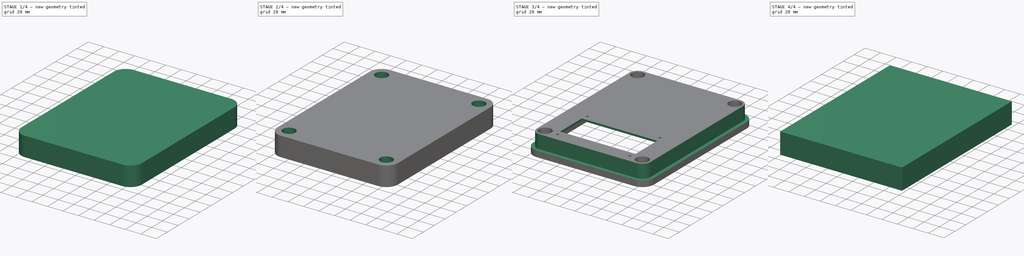
[diagram: build sequence overview — one tinted view per stage of 4, left to right]
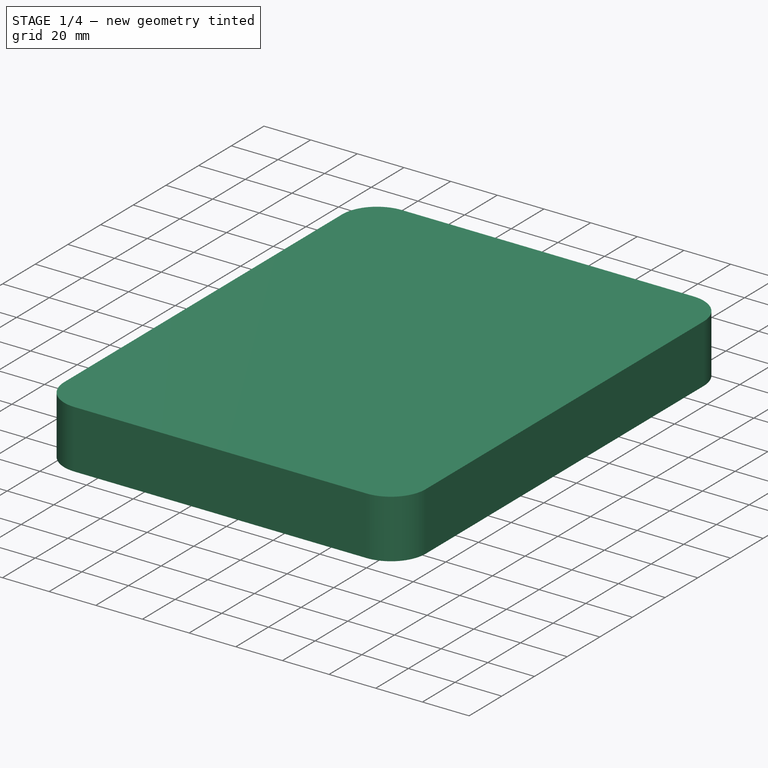
[diagram: stage 1 of 4 — iso view after this stage's code; geometry added in this stage tinted green]
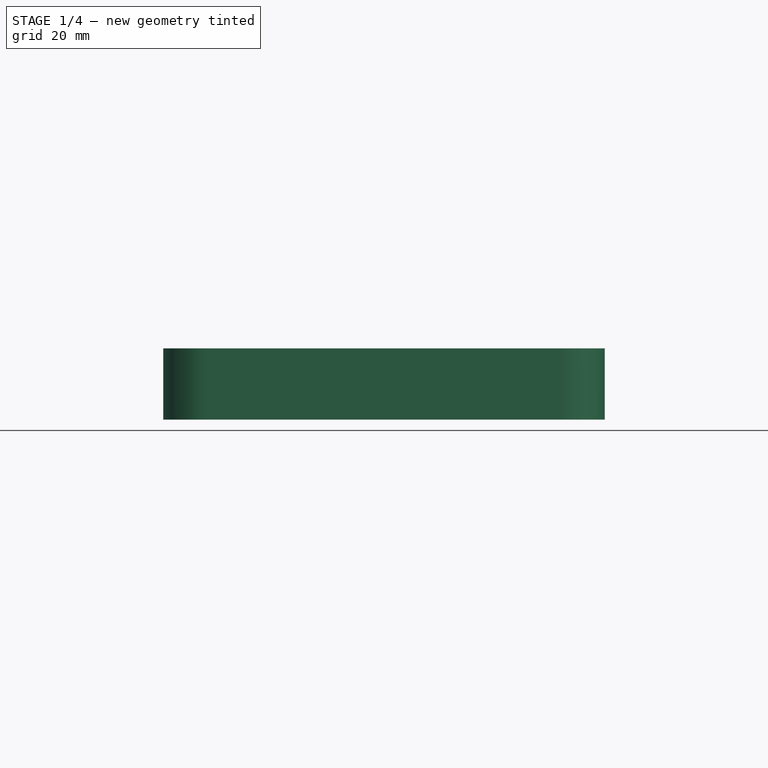
[diagram: stage 1 of 4 — front view after this stage's code; geometry added in this stage tinted green]
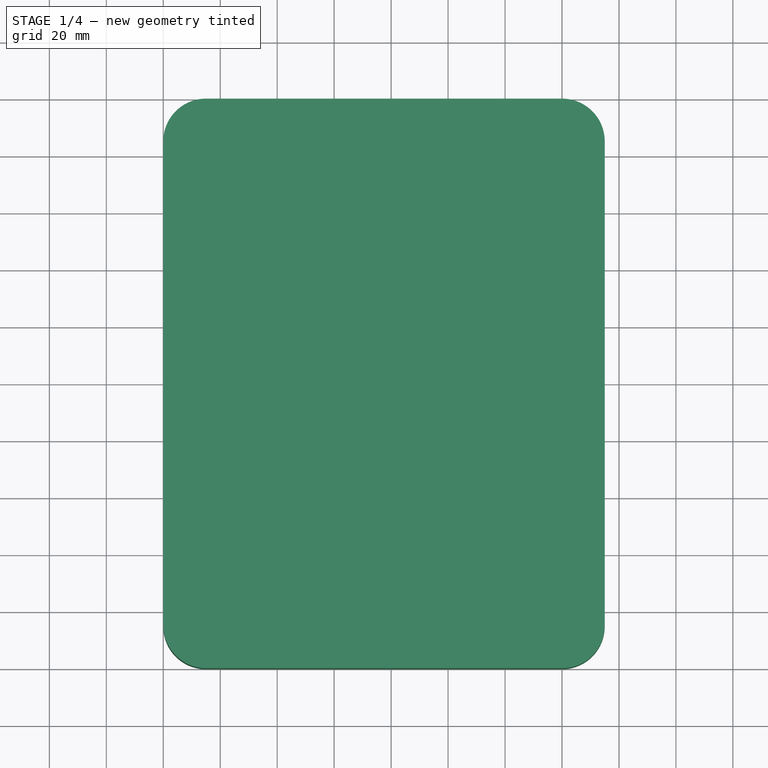
[diagram: stage 1 of 4 — top view after this stage's code; geometry added in this stage tinted green]
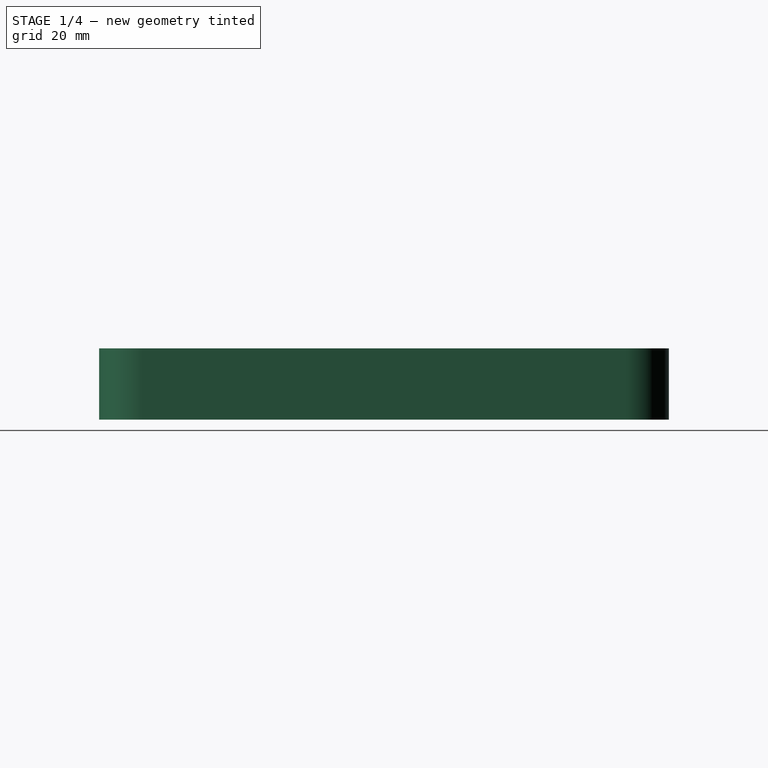
[diagram: stage 1 of 4 — right view after this stage's code; geometry added in this stage tinted green]
FCSTD DOCUMENT  (FreeCAD 0.19R17462 (Git))
Label: PathCoperchio
License: All rights reserved
LicenseURL: http://en.wikipedia.org/wiki/All_rights_reserved
objects: Sketcher::SketchObject×8, PartDesign::Pocket×7, Path::FeaturePython×3, Part::FeaturePython×2, PartDesign::Pad×1, PartDesign::Fillet×1, PartDesign::Body×1, App::FeaturePython×1, App::DocumentObjectGroup×1, Path::FeatureCompoundPython×1
note: 29 computed .brp shape members not serialized (recipe doc carries the construction recipe); baked Part::Feature solids carry a one-line shape summary decoded from their .brp

FEATURE [Sketcher::SketchObject] Sketch
  MapMode = 5
  Support = -> [XY_Plane]
  sketch-geometry (4):
    g0: LineSegment StartX=0 StartY=0 StartZ=0 EndX=155 EndY=0 EndZ=0
    g1: LineSegment StartX=155 StartY=0 StartZ=0 EndX=155 EndY=200 EndZ=0
    g2: LineSegment StartX=155 StartY=200 StartZ=0 EndX=0 EndY=200 EndZ=0
    g3: LineSegment StartX=0 StartY=200 StartZ=0 EndX=0 EndY=0 EndZ=0
  constraints (11):
    c: Coincident(g0,g1)
    c: Coincident(g1,g2)
    c: Coincident(g2,g3)
    c: Coincident(g3,g0)
    c: Horizontal(g0)
    c: Horizontal(g2)
    c: Vertical(g1)
    c: Vertical(g3)
    c: Coincident(g0,g-1)
    c: Distance(g2) = 155
    c: Distance(g3) = 200
FEATURE [PartDesign::Pad] Pad
  Length = 25
  Length2 = 100
  Profile = -> Sketch
  Type = 0
FEATURE [Sketcher::SketchObject] Sketch001
  ExternalGeometry = -> [Pad]
  MapMode = 5
  Placement = pos=(0,0,0) rot=(1,0,0;3.14159rad)
  Support = -> [Pad]
  sketch-geometry (39):
    g0: LineSegment [constr] StartX=7.5 StartY=-7.5 StartZ=0 EndX=147.5 EndY=-7.5 EndZ=0
    g1: LineSegment [constr] StartX=147.5 StartY=-7.5 StartZ=0 EndX=147.5 EndY=-192.5 EndZ=0
    g2: LineSegment [constr] StartX=147.5 StartY=-192.5 StartZ=0 EndX=7.5 EndY=-192.5 EndZ=0
    g3: LineSegment [constr] StartX=7.5 StartY=-192.5 StartZ=0 EndX=7.5 EndY=-7.5 EndZ=0
    g4: LineSegment [constr] StartX=77.5 StartY=0 StartZ=0 EndX=77.5 EndY=-200 EndZ=0
    g5: LineSegment [constr] StartX=0 StartY=-100 StartZ=0 EndX=155 EndY=-100 EndZ=0
    g6: GeomPoint X=77.5 Y=-100 Z=0
    g7: LineSegment [constr] StartX=7.5 StartY=-7.5 StartZ=0 EndX=27.5 EndY=-7.5 EndZ=0
    g8: LineSegment [constr] StartX=27.5 StartY=-7.5 StartZ=0 EndX=27.5 EndY=-27.5 EndZ=0
    g9: LineSegment [constr] StartX=27.5 StartY=-27.5 StartZ=0 EndX=7.5 EndY=-27.5 EndZ=0
    g10: LineSegment [constr] StartX=7.5 StartY=-27.5 StartZ=0 EndX=7.5 EndY=-7.5 EndZ=0
    g11: LineSegment [constr] StartX=147.5 StartY=-7.5 StartZ=0 EndX=127.5 EndY=-7.5 EndZ=0
    g12: LineSegment [constr] StartX=127.5 StartY=-7.5 StartZ=0 EndX=127.5 EndY=-27.5 EndZ=0
    g13: LineSegment [constr] StartX=127.5 StartY=-27.5 StartZ=0 EndX=147.5 EndY=-27.5 EndZ=0
    g14: LineSegment [constr] StartX=147.5 StartY=-27.5 StartZ=0 EndX=147.5 EndY=-7.5 EndZ=0
    g15: LineSegment [constr] StartX=147.5 StartY=-192.5 StartZ=0 EndX=127.5 EndY=-192.5 EndZ=0
    g16: LineSegment [constr] StartX=127.5 StartY=-192.5 StartZ=0 EndX=127.5 EndY=-172.5 EndZ=0
    g17: LineSegment [constr] StartX=127.5 StartY=-172.5 StartZ=0 EndX=147.5 EndY=-172.5 EndZ=0
    g18: LineSegment [constr] StartX=147.5 StartY=-172.5 StartZ=0 EndX=147.5 EndY=-192.5 EndZ=0
    g19: LineSegment [constr] StartX=7.5 StartY=-192.5 StartZ=0 EndX=27.5 EndY=-192.5 EndZ=0
    g20: LineSegment [constr] StartX=27.5 StartY=-192.5 StartZ=0 EndX=27.5 EndY=-172.5 EndZ=0
    g21: LineSegment [constr] StartX=27.5 StartY=-172.5 StartZ=0 EndX=7.5 EndY=-172.5 EndZ=0
    g22: LineSegment [constr] StartX=7.5 StartY=-172.5 StartZ=0 EndX=7.5 EndY=-192.5 EndZ=0
    g23: ArcOfCircle CenterX=17.5 CenterY=-17.5 CenterZ=0 NormalX=0 NormalY=0 NormalZ=1 AngleXU=0 Radius=10 StartAngle=4.71239 EndAngle=6.28319
    g24: ArcOfCircle CenterX=137.5 CenterY=-17.5 CenterZ=0 NormalX=0 NormalY=0 NormalZ=1 AngleXU=0 Radius=10 StartAngle=3.14159 EndAngle=4.71239
    g25: ArcOfCircle CenterX=137.5 CenterY=-182.5 CenterZ=0 NormalX=0 NormalY=0 NormalZ=1 AngleXU=0 Radius=10 StartAngle=1.5708 EndAngle=3.14159
    g26: ArcOfCircle CenterX=17.5 CenterY=-182.5 CenterZ=0 NormalX=0 NormalY=0 NormalZ=1 AngleXU=0 Radius=10 StartAngle=1.00045e-07 EndAngle=1.5708
    g27: LineSegment StartX=27.5 StartY=-17.5 StartZ=0 EndX=27.5 EndY=-7.5 EndZ=0
    g28: LineSegment StartX=27.5 StartY=-7.5 StartZ=0 EndX=127.5 EndY=-7.5 EndZ=0
    g29: LineSegment StartX=127.5 StartY=-7.5 StartZ=0 EndX=127.5 EndY=-17.5 EndZ=0
    g30: LineSegment StartX=137.5 StartY=-27.5 StartZ=0 EndX=147.5 EndY=-27.5 EndZ=0
    g31: LineSegment StartX=147.5 StartY=-27.5 StartZ=0 EndX=147.5 EndY=-172.5 EndZ=0
    g32: LineSegment StartX=147.5 StartY=-172.5 StartZ=0 EndX=137.5 EndY=-172.5 EndZ=0
    g33: LineSegment StartX=27.5 StartY=-182.5 StartZ=0 EndX=27.5 EndY=-192.5 EndZ=0
    g34: LineSegment StartX=27.5 StartY=-192.5 StartZ=0 EndX=127.5 EndY=-192.5 EndZ=0
    g35: LineSegment StartX=127.5 StartY=-192.5 StartZ=0 EndX=127.5 EndY=-182.5 EndZ=0
    g36: LineSegment StartX=17.5 StartY=-172.5 StartZ=0 EndX=7.5 EndY=-172.5 EndZ=0
    g37: LineSegment StartX=7.5 StartY=-172.5 StartZ=0 EndX=7.5 EndY=-27.5 EndZ=0
    g38: LineSegment StartX=7.5 StartY=-27.5 StartZ=0 EndX=17.5 EndY=-27.5 EndZ=0
  constraints (102):
    c: Coincident(g0,g1)
    c: Coincident(g1,g2)
    c: Coincident(g2,g3)
    c: Coincident(g3,g0)
    c: Distance(g3) = 185
    c: Distance(g2) = 140
    c: PointOnObject(g4,g-1)
    c: PointOnObject(g4,g-4)
    c: PointOnObject(g5,g-2)
    c: PointOnObject(g5,g-3)
    c: Symmetric(g-4,g-3,g5)
    c: Symmetric(g-3,g-1,g4)
    c: PointOnObject(g6,g5)
    c: PointOnObject(g6,g4)
    c: Symmetric(g0,g0,g4)
    c: Symmetric(g1,g2,g4)
    c: Symmetric(g2,g0,g5)
    c: Coincident(g7,g8)
    c: Coincident(g8,g9)
    c: Coincident(g9,g10)
    c: Coincident(g10,g7)
    c: Horizontal(g7)
    c: Horizontal(g9)
    c: Vertical(g8)
    c: Vertical(g10)
    c: Coincident(g7,g0)
    c: Coincident(g11,g12)
    c: Coincident(g12,g13)
    c: Coincident(g13,g14)
    c: Coincident(g14,g11)
    c: Horizontal(g11)
    c: Horizontal(g13)
    c: Vertical(g12)
    c: Vertical(g14)
    c: Coincident(g11,g0)
    c: Coincident(g15,g16)
    c: Coincident(g16,g17)
    c: Coincident(g17,g18)
    c: Coincident(g18,g15)
    c: Horizontal(g15)
    c: Horizontal(g17)
    c: Vertical(g16)
    c: Vertical(g18)
    c: Coincident(g15,g1)
    c: Coincident(g19,g20)
    c: Coincident(g20,g21)
    c: Coincident(g21,g22)
    c: Coincident(g22,g19)
    c: Horizontal(g19)
    c: Horizontal(g21)
    c: Vertical(g20)
    c: Vertical(g22)
    c: Coincident(g19,g2)
    c: Symmetric(g16,g20,g4)
    c: Symmetric(g12,g8,g4)
    c: Symmetric(g20,g8,g5)
    c: Distance(g8) = 20
    c: Distance(g9) = 20
    c: PointOnObject(g23,g9)
    c: PointOnObject(g23,g8)
    c: Tangent(g23,g8)
    c: Tangent(g23,g9)
    c: Radius(g23) = 10
    c: PointOnObject(g24,g12)
    c: PointOnObject(g24,g13)
    c: Tangent(g24,g13)
    c: Tangent(g24,g12)
    c: PointOnObject(g25,g16)
    c: PointOnObject(g25,g17)
    c: Tangent(g25,g17)
    c: Tangent(g25,g16)
    c: PointOnObject(g26,g21)
    c: PointOnObject(g26,g20)
    c: Tangent(g26,g20)
    c: Tangent(g26,g21)
    c: Equal(g26,g25)
    c: Equal(g25,g24)
    c: Equal(g24,g23)
    c: Coincident(g27,g28)
    c: Coincident(g28,g29)
    c: Coincident(g27,g23)
    c: Coincident(g27,g7)
    c: Coincident(g28,g11)
    c: Coincident(g29,g24)
    c: Coincident(g30,g31)
    c: Coincident(g31,g32)
    c: Coincident(g30,g24)
    c: Coincident(g30,g13)
    c: Coincident(g31,g17)
    c: Coincident(g25,g32)
    c: Coincident(g33,g34)
    c: Coincident(g34,g35)
    c: Coincident(g19,g33)
    c: Coincident(g26,g33)
    c: Coincident(g34,g15)
    c: Coincident(g35,g25)
    c: Coincident(g36,g26)
    c: Coincident(g37,g36)
    c: Coincident(g38,g37)
    c: Coincident(g38,g23)
    c: Coincident(g36,g21)
    c: Coincident(g37,g9)
FEATURE [PartDesign::Pocket] Pocket
  BaseFeature = -> Pad
  Length = 22.5
  Length2 = 100
  Profile = -> Sketch001
  Type = 0
FEATURE [PartDesign::Fillet] Fillet
  Base = -> Pocket [Edge2,Edge8,Edge1,Edge5]
  BaseFeature = -> Pocket
  Radius = 15
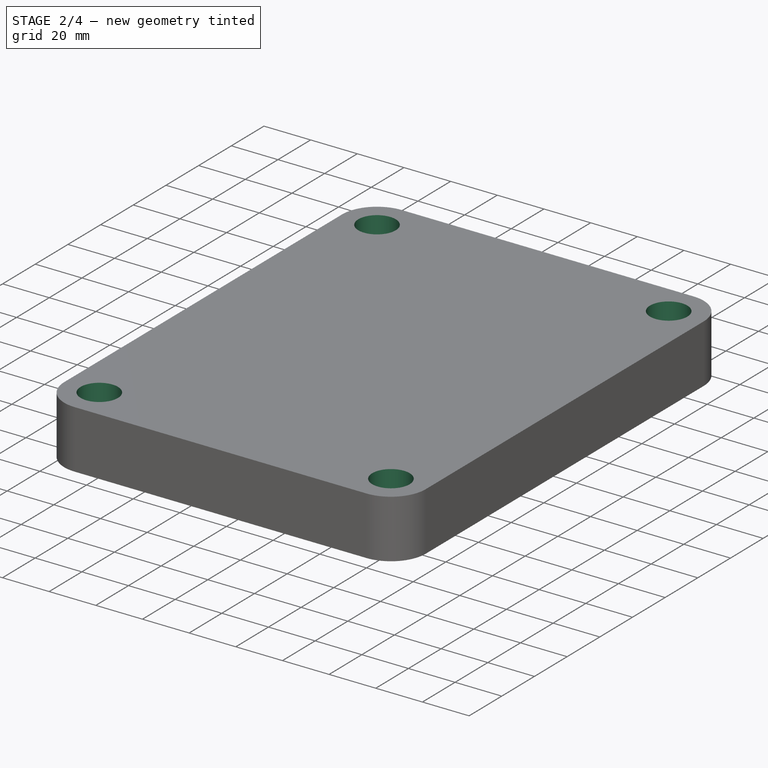
[diagram: stage 2 of 4 — iso view after this stage's code; geometry added in this stage tinted green]
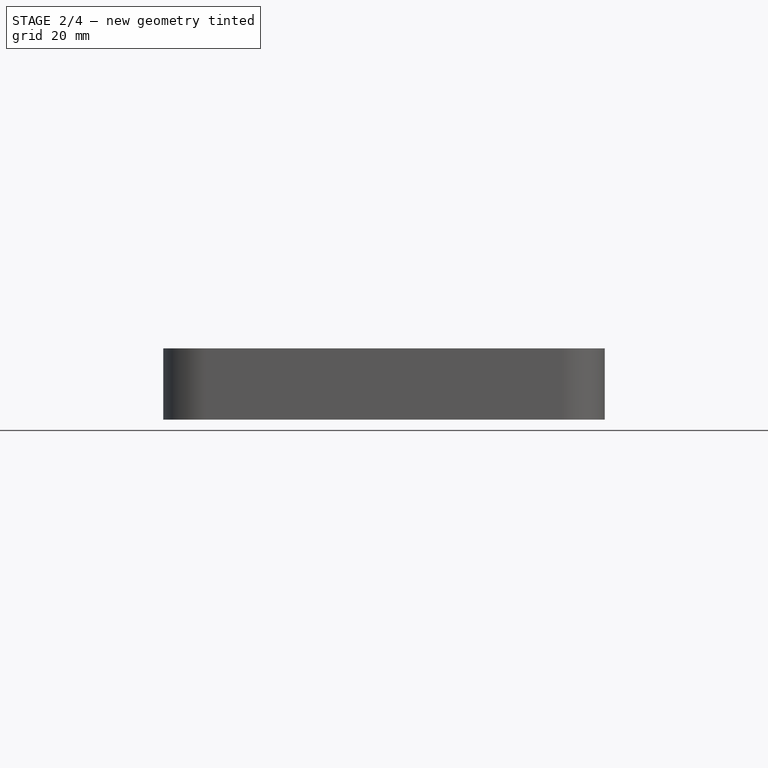
[diagram: stage 2 of 4 — front view after this stage's code; geometry added in this stage tinted green]
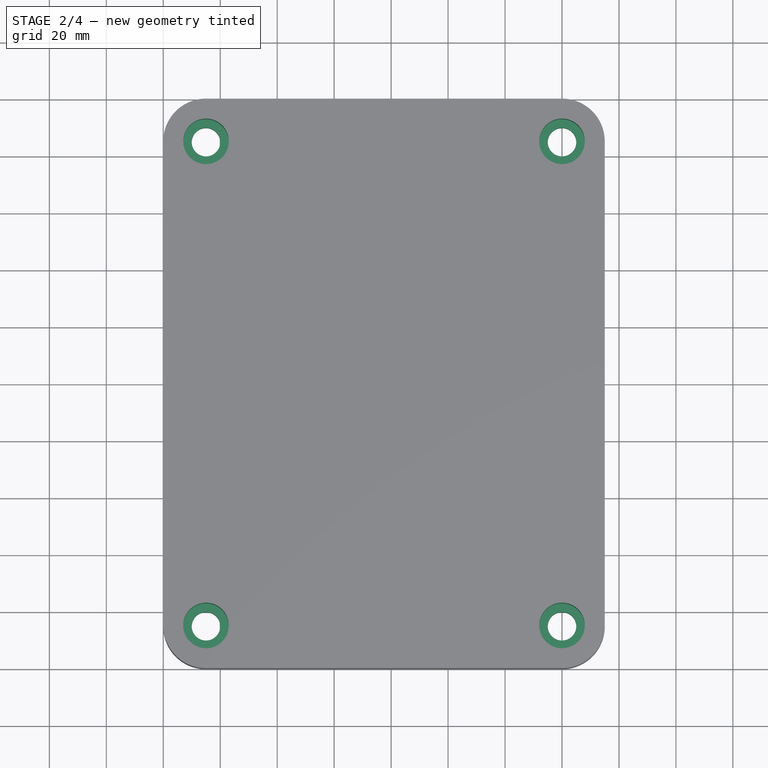
[diagram: stage 2 of 4 — top view after this stage's code; geometry added in this stage tinted green]
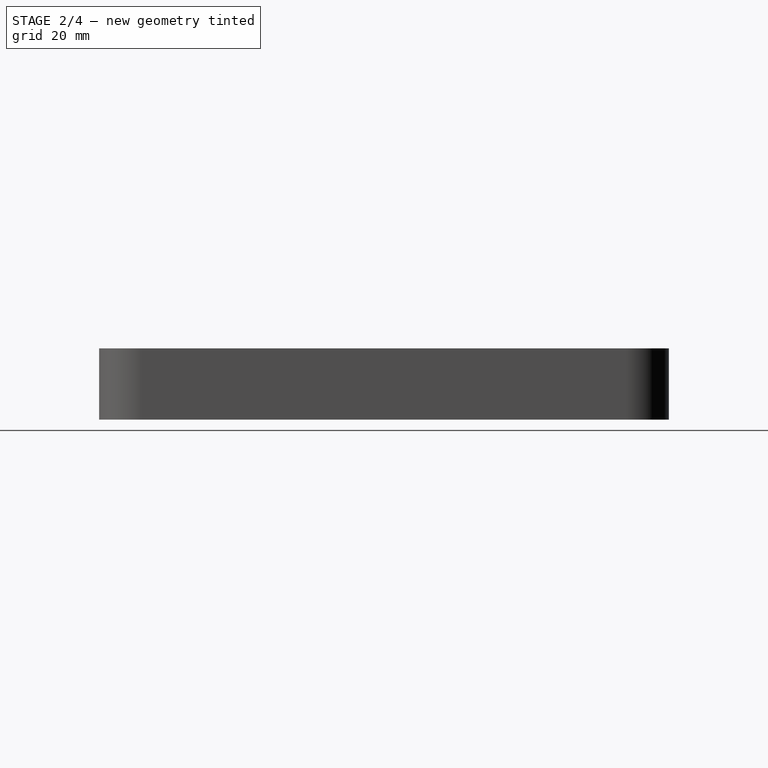
[diagram: stage 2 of 4 — right view after this stage's code; geometry added in this stage tinted green]
FEATURE [Sketcher::SketchObject] Sketch002
  ExternalGeometry = -> [Fillet]
  MapMode = 5
  Placement = pos=(0,0,0) rot=(1,0,0;3.14159rad)
  Support = -> [Fillet]
  sketch-geometry (4):
    g0: Circle CenterX=15 CenterY=-15 CenterZ=0 NormalX=0 NormalY=0 NormalZ=1 AngleXU=0 Radius=5
    g1: Circle CenterX=140 CenterY=-15 CenterZ=0 NormalX=0 NormalY=0 NormalZ=1 AngleXU=0 Radius=5
    g2: Circle CenterX=140 CenterY=-185 CenterZ=0 NormalX=0 NormalY=0 NormalZ=1 AngleXU=0 Radius=5
    g3: Circle CenterX=15 CenterY=-185 CenterZ=0 NormalX=0 NormalY=0 NormalZ=1 AngleXU=0 Radius=5
  constraints (12):
    c: Equal(g3,g2)
    c: Equal(g2,g1)
    c: Equal(g1,g0)
    c: Radius(g0) = 5
    c: Vertical(g0,g3)
    c: Horizontal(g3,g2)
    c: Vertical(g2,g1)
    c: Horizontal(g1,g0)
    c: DistanceX(g-2,g0) = 15
    c: DistanceY(g-1,g0) = -15
    c: Distance(g2,g-4) = 15
    c: Distance(g2,g-3) = 15
FEATURE [PartDesign::Pocket] Pocket001
  BaseFeature = -> Fillet
  Length = 5
  Length2 = 100
  Profile = -> Sketch002
  Type = 1
FEATURE [Sketcher::SketchObject] Sketch003
  ExternalGeometry = -> [Pocket001]
  MapMode = 5
  Placement = pos=(0,0,25) rot=(0,0,1;0rad)
  Support = -> [Pocket001]
  sketch-geometry (4):
    g0: Circle CenterX=15 CenterY=185 CenterZ=0 NormalX=0 NormalY=0 NormalZ=1 AngleXU=0 Radius=8
    g1: Circle CenterX=140 CenterY=185 CenterZ=0 NormalX=0 NormalY=0 NormalZ=1 AngleXU=0 Radius=8
    g2: Circle CenterX=140 CenterY=15 CenterZ=0 NormalX=0 NormalY=0 NormalZ=1 AngleXU=0 Radius=8
    g3: Circle CenterX=15 CenterY=15 CenterZ=0 NormalX=0 NormalY=0 NormalZ=1 AngleXU=0 Radius=8
  constraints (8):
    c: Coincident(g-6,g3)
    c: Coincident(g2,g-5)
    c: Coincident(g-4,g1)
    c: Equal(g1,g0)
    c: Equal(g0,g3)
    c: Equal(g3,g2)
    c: Radius(g0) = 8
    c: Coincident(g0,g-3)
FEATURE [PartDesign::Pocket] Pocket002
  BaseFeature = -> Pocket001
  Length = 16
  Length2 = 100
  Profile = -> Sketch003
  Type = 0
FEATURE [Sketcher::SketchObject] Sketch004
  ExternalGeometry = -> [Pocket002]
  MapMode = 5
  Placement = pos=(0,0,25) rot=(0,0,1;0rad)
  Support = -> [Pocket002]
  sketch-geometry (16):
    g0: ArcOfCircle CenterX=15 CenterY=185 CenterZ=0 NormalX=0 NormalY=0 NormalZ=1 AngleXU=0 Radius=10.5 StartAngle=1.5708 EndAngle=3.14159
    g1: ArcOfCircle CenterX=140 CenterY=185 CenterZ=0 NormalX=0 NormalY=0 NormalZ=1 AngleXU=0 Radius=10.5 StartAngle=6.28318 EndAngle=7.85398
    g2: ArcOfCircle CenterX=140 CenterY=15 CenterZ=0 NormalX=0 NormalY=0 NormalZ=1 AngleXU=0 Radius=10.5 StartAngle=4.71239 EndAngle=6.28319
    g3: ArcOfCircle CenterX=15 CenterY=15 CenterZ=0 NormalX=0 NormalY=0 NormalZ=1 AngleXU=0 Radius=10.5 StartAngle=3.14159 EndAngle=4.71239
    g4: LineSegment StartX=4.5 StartY=185 StartZ=0 EndX=4.5 EndY=15 EndZ=0
    g5: LineSegment StartX=15 StartY=4.5 StartZ=0 EndX=140 EndY=4.5 EndZ=0
    g6: LineSegment StartX=150.5 StartY=15 StartZ=0 EndX=150.5 EndY=185 EndZ=0
    g7: LineSegment StartX=15 StartY=195.5 StartZ=0 EndX=140 EndY=195.5 EndZ=0
    g8: ArcOfCircle CenterX=15 CenterY=185 CenterZ=0 NormalX=0 NormalY=0 NormalZ=1 AngleXU=0 Radius=15 StartAngle=1.5708 EndAngle=3.14159
    g9: ArcOfCircle CenterX=140 CenterY=185 CenterZ=0 NormalX=0 NormalY=0 NormalZ=1 AngleXU=0 Radius=15 StartAngle=1e-16 EndAngle=1.5708
    g10: ArcOfCircle CenterX=140 CenterY=15 CenterZ=0 NormalX=0 NormalY=0 NormalZ=1 AngleXU=0 Radius=15 StartAngle=4.71239 EndAngle=6.28319
    g11: ArcOfCircle CenterX=15 CenterY=15 CenterZ=0 NormalX=0 NormalY=0 NormalZ=1 AngleXU=0 Radius=15 StartAngle=3.14159 EndAngle=4.71239
    g12: LineSegment StartX=0 StartY=15 StartZ=0 EndX=0 EndY=185 EndZ=0
    g13: LineSegment StartX=15 StartY=200 StartZ=0 EndX=140 EndY=200 EndZ=0
    g14: LineSegment StartX=155 StartY=185 StartZ=0 EndX=155 EndY=15 EndZ=0
    g15: LineSegment StartX=140 StartY=0 StartZ=0 EndX=15 EndY=0 EndZ=0
  constraints (37):
    c: Coincident(g1,g-4)
    c: Coincident(g2,g-6)
    c: Coincident(g3,g-5)
    c: Vertical(g4)
    c: Horizontal(g5)
    c: Coincident(g6,g1)
    c: Vertical(g6)
    c: Horizontal(g7)
    c: Coincident(g0,g-3)
    c: Tangent(g7,g1) = 1.5708
    c: Tangent(g7,g0) = 1.5708
    c: Tangent(g4,g0) = -1.5708
    c: Tangent(g4,g3) = -1.5708
    c: Tangent(g5,g3) = -1.5708
    c: Tangent(g5,g2) = -1.5708
    c: Tangent(g2,g6) = -1.5708
    c: DistanceX(g-2,g0) = 4.5
    c: Coincident(g8,g0)
    c: Coincident(g8,g-10)
    c: Coincident(g8,g-7)
    c: Coincident(g9,g1)
    c: Coincident(g9,g-7)
    c: Coincident(g9,g-9)
    c: Coincident(g10,g2)
    c: Coincident(g10,g-8)
    c: Coincident(g10,g-9)
    c: Coincident(g11,g3)
    c: Coincident(g11,g-10)
    c: Coincident(g11,g-8)
    c: Coincident(g12,g11)
    c: Coincident(g13,g8)
    c: Coincident(g14,g9)
    c: Coincident(g15,g10)
    c: Coincident(g11,g15)
    c: Coincident(g12,g8)
    c: Coincident(g13,g9)
    c: Coincident(g10,g14)
FEATURE [PartDesign::Pocket] Pocket003
  BaseFeature = -> Pocket002
  Length = 17.5
  Length2 = 100
  Profile = -> Sketch004
  Reversed = true
  Type = 0
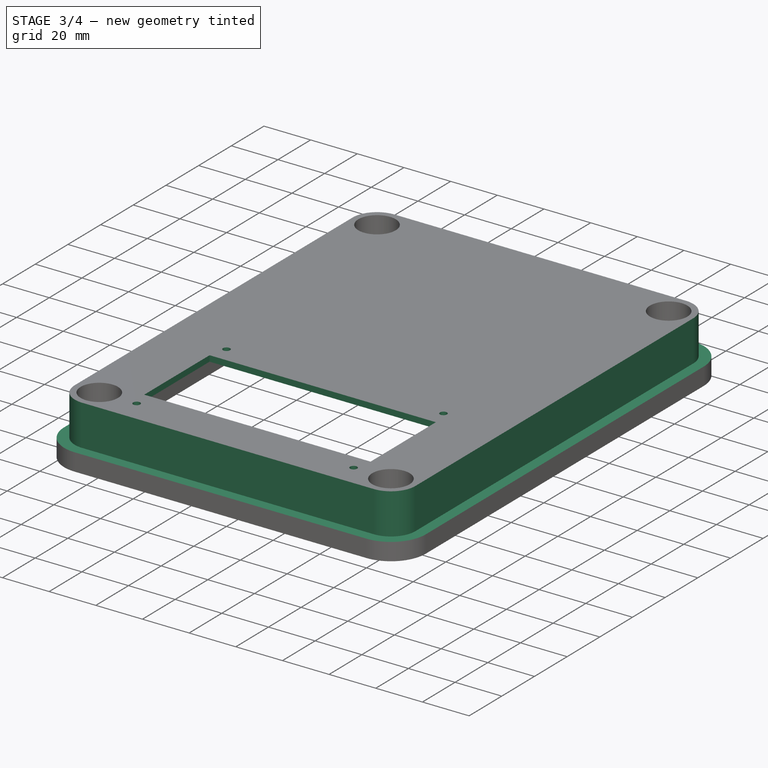
[diagram: stage 3 of 4 — iso view after this stage's code; geometry added in this stage tinted green]
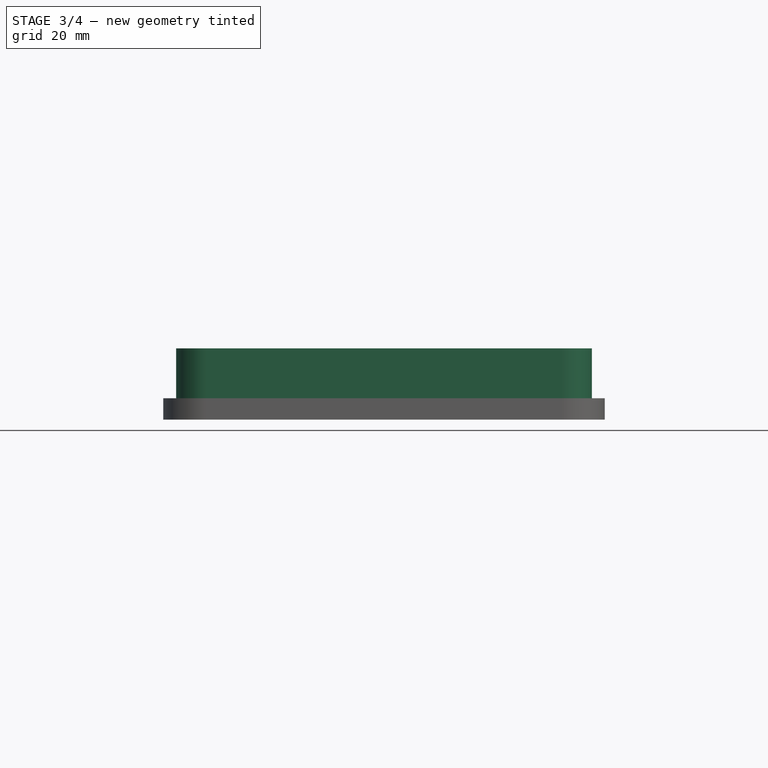
[diagram: stage 3 of 4 — front view after this stage's code; geometry added in this stage tinted green]
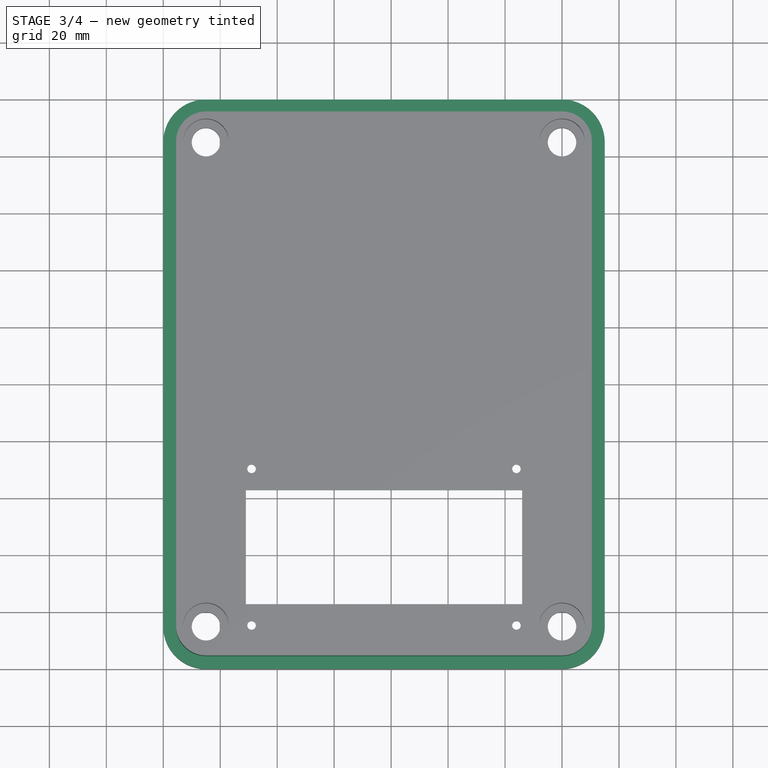
[diagram: stage 3 of 4 — top view after this stage's code; geometry added in this stage tinted green]
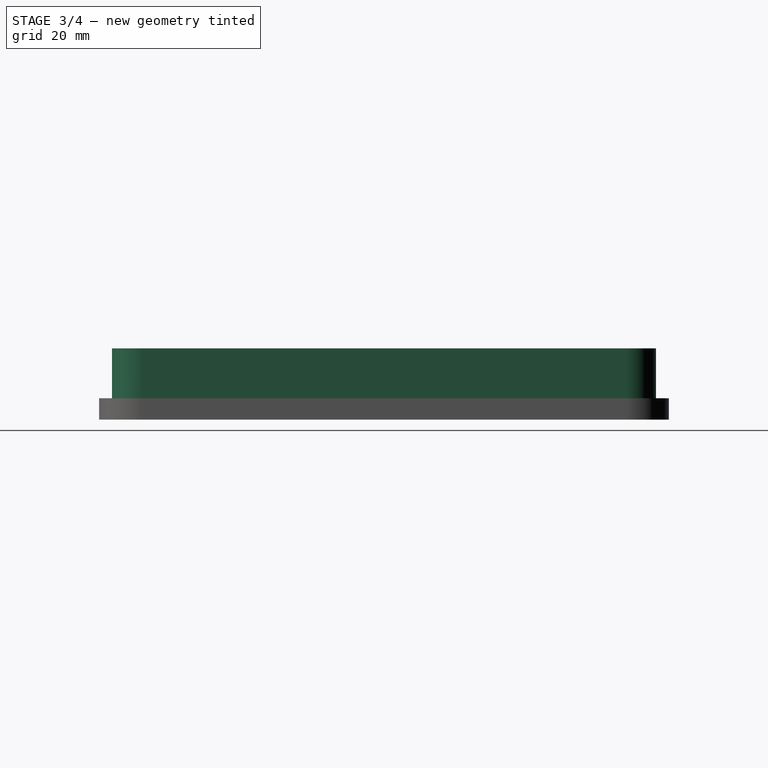
[diagram: stage 3 of 4 — right view after this stage's code; geometry added in this stage tinted green]
FEATURE [PartDesign::Pocket] Pocket004
  BaseFeature = -> Pocket003
  Length = 17.5
  Length2 = 100
  Profile = -> Sketch004
  Type = 0
FEATURE [Sketcher::SketchObject] Sketch005
  MapMode = 5
  Placement = pos=(0,0,25) rot=(0,0,1;0rad)
  Support = -> [Pocket004]
FEATURE [Sketcher::SketchObject] Sketch006
  ExternalGeometry = -> [Pocket004]
  MapMode = 5
  Placement = pos=(0,0,22.5) rot=(1,0,0;3.14159rad)
  Support = -> [Pocket004]
  sketch-geometry (9):
    g0: LineSegment StartX=29 StartY=-22.5 StartZ=0 EndX=126 EndY=-22.5 EndZ=0
    g1: LineSegment StartX=126 StartY=-22.5 StartZ=0 EndX=126 EndY=-62.5 EndZ=0
    g2: LineSegment StartX=126 StartY=-62.5 StartZ=0 EndX=29 EndY=-62.5 EndZ=0
    g3: LineSegment StartX=29 StartY=-62.5 StartZ=0 EndX=29 EndY=-22.5 EndZ=0
    g4: LineSegment [constr] StartX=77.5 StartY=-7.5 StartZ=0 EndX=77.5 EndY=-192.5 EndZ=0
    g5: Circle CenterX=31 CenterY=-15 CenterZ=0 NormalX=0 NormalY=0 NormalZ=1 AngleXU=0 Radius=1.5
    g6: Circle CenterX=124 CenterY=-15 CenterZ=0 NormalX=0 NormalY=0 NormalZ=1 AngleXU=0 Radius=1.5
    g7: Circle CenterX=124 CenterY=-70 CenterZ=0 NormalX=0 NormalY=0 NormalZ=1 AngleXU=0 Radius=1.5
    g8: Circle CenterX=31 CenterY=-70 CenterZ=0 NormalX=0 NormalY=0 NormalZ=1 AngleXU=0 Radius=1.5
  constraints (24):
    c: Coincident(g0,g1)
    c: Coincident(g1,g2)
    c: Coincident(g2,g3)
    c: Coincident(g3,g0)
    c: Horizontal(g2)
    c: Vertical(g1)
    c: Vertical(g3)
    c: Distance(g0) = 97
    c: Distance(g-3,g0) = 15
    c: Distance(g3) = 40
    c: PointOnObject(g4,g-3)
    c: PointOnObject(g4,g-5)
    c: Symmetric(g-5,g-5,g4)
    c: Symmetric(g0,g0,g4)
    c: Equal(g8,g5)
    c: Equal(g5,g6)
    c: Equal(g6,g7)
    c: Radius(g7) = 1.5
    c: Symmetric(g8,g7,g4)
    c: Symmetric(g5,g6,g4)
    c: Vertical(g8,g5)
    c: Distance(g7,g2) = 7.5
    c: Distance(g7,g6) = 55
    c: Distance(g8,g7) = 93
FEATURE [PartDesign::Pocket] Pocket005
  BaseFeature = -> Pocket004
  Length = 5
  Length2 = 100
  Profile = -> Sketch006
  Type = 1
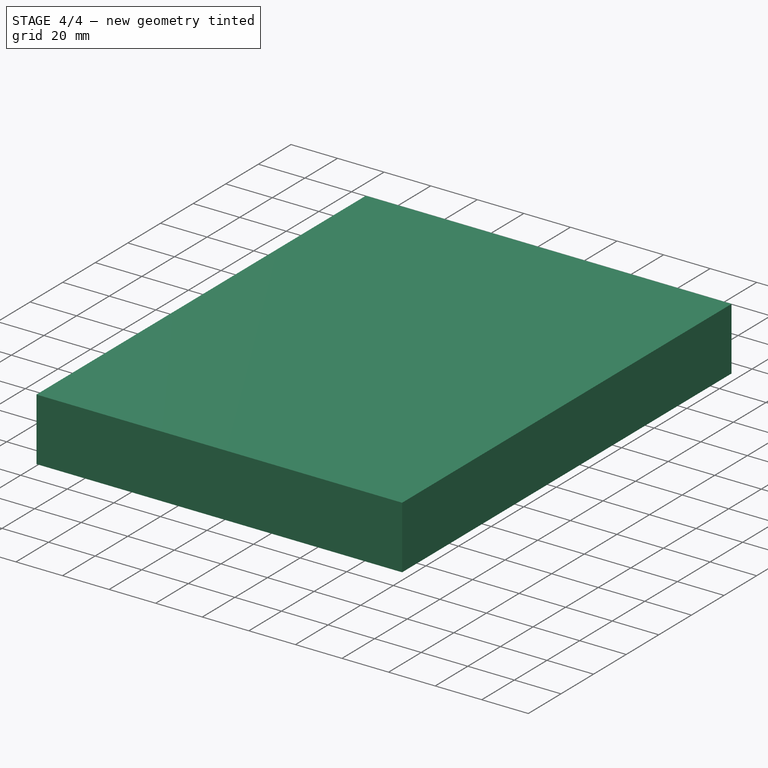
[diagram: stage 4 of 4 — iso view after this stage's code; geometry added in this stage tinted green]
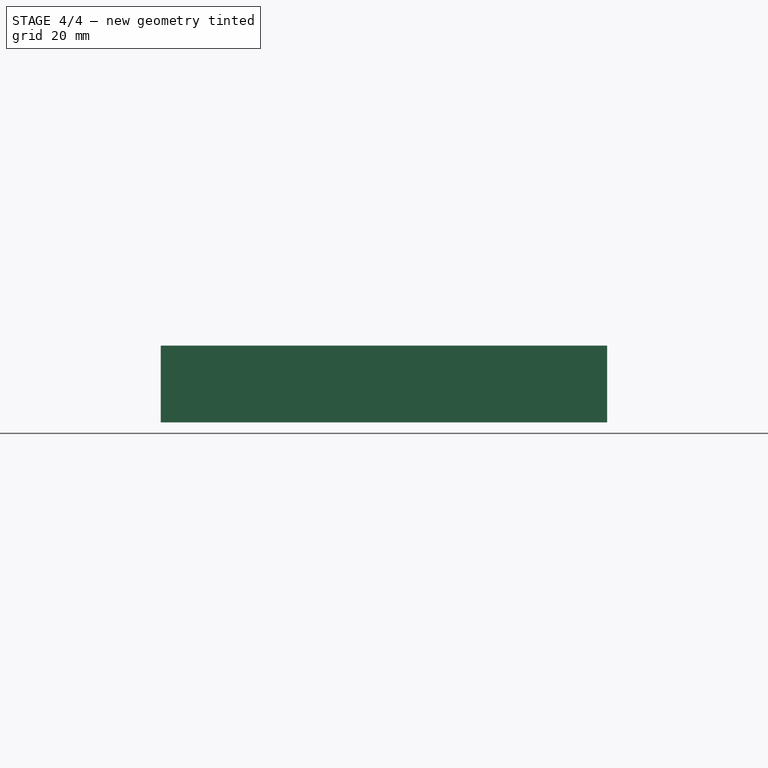
[diagram: stage 4 of 4 — front view after this stage's code; geometry added in this stage tinted green]
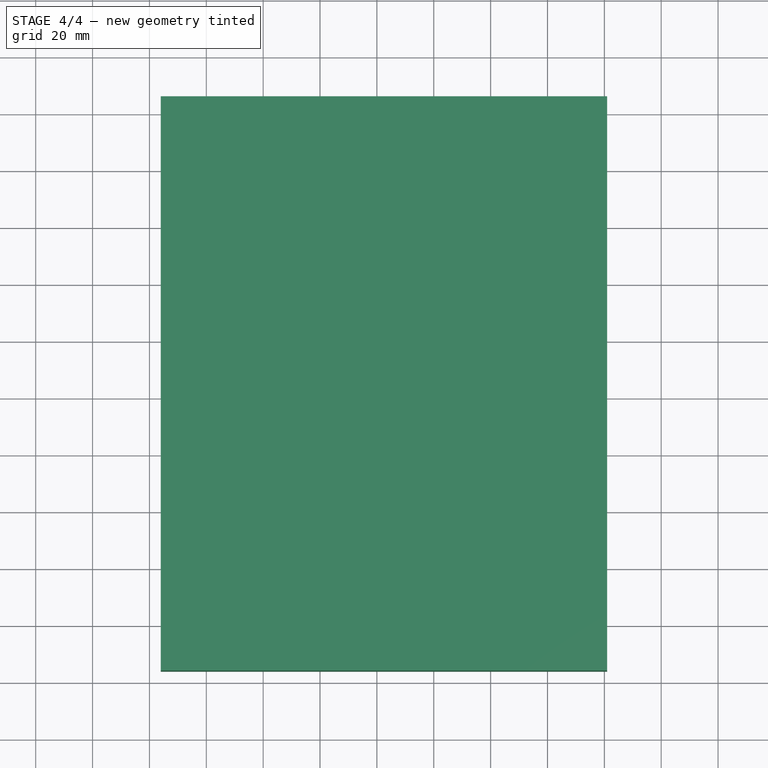
[diagram: stage 4 of 4 — top view after this stage's code; geometry added in this stage tinted green]
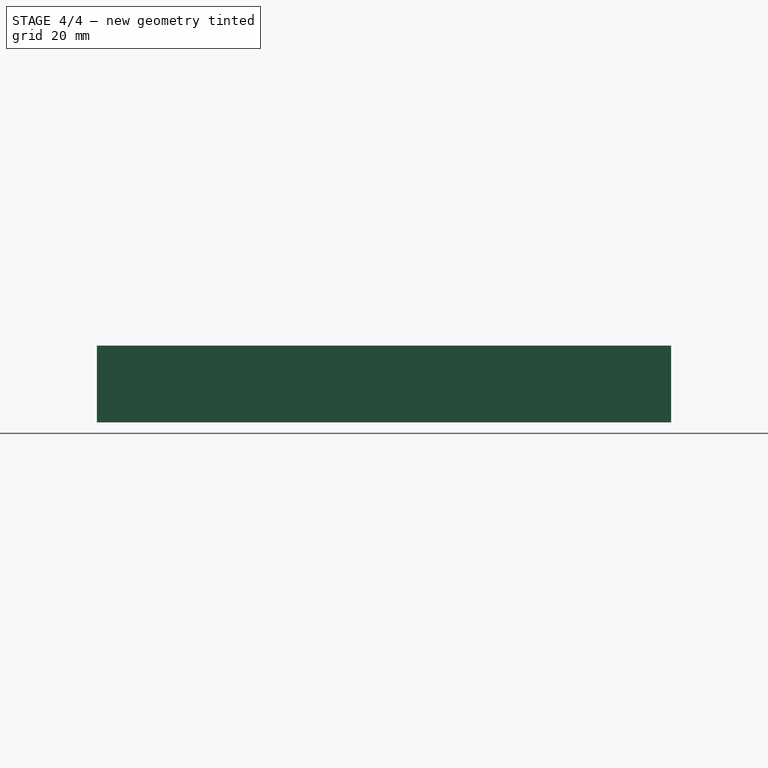
[diagram: stage 4 of 4 — right view after this stage's code; geometry added in this stage tinted green]
FEATURE [Sketcher::SketchObject] Sketch007
  ExternalGeometry = -> [Pocket005]
  MapMode = 5
  Placement = pos=(0,0,22.5) rot=(1,0,0;3.14159rad)
  Support = -> [Pocket005]
  sketch-geometry (81):
    g0: Circle CenterX=47.5 CenterY=-164.5 CenterZ=0 NormalX=0 NormalY=0 NormalZ=1 AngleXU=0 Radius=11.125
    g1: LineSegment StartX=118.3 StartY=-78.6 StartZ=0 EndX=137.5 EndY=-78.6 EndZ=0
    g2: LineSegment StartX=137.5 StartY=-78.6 StartZ=0 EndX=137.5 EndY=-91.5 EndZ=0
    g3: LineSegment StartX=137.5 StartY=-91.5 StartZ=0 EndX=118.3 EndY=-91.5 EndZ=0
    g4: LineSegment StartX=118.3 StartY=-91.5 StartZ=0 EndX=118.3 EndY=-78.6 EndZ=0
    g5: LineSegment StartX=118.3 StartY=-116.6 StartZ=0 EndX=137.5 EndY=-116.6 EndZ=0
    g6: LineSegment StartX=137.5 StartY=-116.6 StartZ=0 EndX=137.5 EndY=-129.5 EndZ=0
    g7: LineSegment StartX=137.5 StartY=-129.5 StartZ=0 EndX=118.3 EndY=-129.5 EndZ=0
    g8: LineSegment StartX=118.3 StartY=-129.5 StartZ=0 EndX=118.3 EndY=-116.6 EndZ=0
    g9: LineSegment StartX=118.3 StartY=-135.6 StartZ=0 EndX=137.5 EndY=-135.6 EndZ=0
    g10: LineSegment StartX=137.5 StartY=-135.6 StartZ=0 EndX=137.5 EndY=-148.5 EndZ=0
    g11: LineSegment StartX=137.5 StartY=-148.5 StartZ=0 EndX=118.3 EndY=-148.5 EndZ=0
    g12: LineSegment StartX=118.3 StartY=-148.5 StartZ=0 EndX=118.3 EndY=-135.6 EndZ=0
    g13: LineSegment StartX=118.3 StartY=-154.6 StartZ=0 EndX=137.5 EndY=-154.6 EndZ=0
    g14: LineSegment StartX=137.5 StartY=-154.6 StartZ=0 EndX=137.5 EndY=-167.5 EndZ=0
    g15: LineSegment StartX=137.5 StartY=-167.5 StartZ=0 EndX=118.3 EndY=-167.5 EndZ=0
    g16: LineSegment StartX=118.3 StartY=-167.5 StartZ=0 EndX=118.3 EndY=-154.6 EndZ=0
    g17: LineSegment StartX=118.3 StartY=-97.6 StartZ=0 EndX=137.5 EndY=-97.6 EndZ=0
    g18: LineSegment StartX=137.5 StartY=-97.6 StartZ=0 EndX=137.5 EndY=-110.5 EndZ=0
    g19: LineSegment StartX=137.5 StartY=-110.5 StartZ=0 EndX=118.3 EndY=-110.5 EndZ=0
    g20: LineSegment StartX=118.3 StartY=-110.5 StartZ=0 EndX=118.3 EndY=-97.6 EndZ=0
    g21: LineSegment [constr] StartX=118.3 StartY=-97.6 StartZ=0 EndX=118.3 EndY=-91.5 EndZ=0
    g22: LineSegment [constr] StartX=118.3 StartY=-116.6 StartZ=0 EndX=118.3 EndY=-110.5 EndZ=0
    g23: LineSegment [constr] StartX=118.3 StartY=-135.6 StartZ=0 EndX=118.3 EndY=-129.5 EndZ=0
    g24: LineSegment [constr] StartX=118.3 StartY=-154.6 StartZ=0 EndX=118.3 EndY=-148.5 EndZ=0
    g25: LineSegment [constr] StartX=17.5 StartY=-78.6 StartZ=0 EndX=98.5 EndY=-78.6 EndZ=0
    g26: LineSegment [constr] StartX=98.5 StartY=-78.6 StartZ=0 EndX=98.5 EndY=-109.6 EndZ=0
    g27: LineSegment [constr] StartX=98.5 StartY=-109.6 StartZ=0 EndX=17.5 EndY=-109.6 EndZ=0
    g28: LineSegment [constr] StartX=17.5 StartY=-109.6 StartZ=0 EndX=17.5 EndY=-78.6 EndZ=0
    g29: Circle CenterX=20.5 CenterY=-95.6 CenterZ=0 NormalX=0 NormalY=0 NormalZ=1 AngleXU=0 Radius=1.5
    g30: Circle CenterX=95.5 CenterY=-95.6 CenterZ=0 NormalX=0 NormalY=0 NormalZ=1 AngleXU=0 Radius=1.5
    g31: Circle CenterX=53 CenterY=-93.05 CenterZ=0 NormalX=0 NormalY=0 NormalZ=1 AngleXU=0 Radius=1.5
    g32: Circle CenterX=63 CenterY=-93.05 CenterZ=0 NormalX=0 NormalY=0 NormalZ=1 AngleXU=0 Radius=1.5
    g33: LineSegment [constr] StartX=58 StartY=-78.6 StartZ=0 EndX=58 EndY=-109.6 EndZ=0
    g34: ArcOfCircle CenterX=80 CenterY=-90.8 CenterZ=0 NormalX=0 NormalY=0 NormalZ=1 AngleXU=0 Radius=13 StartAngle=5.32735 EndAngle=10.3806
    g35: ArcOfCircle CenterX=36 CenterY=-90.8 CenterZ=0 NormalX=0 NormalY=0 NormalZ=1 AngleXU=0 Radius=13 StartAngle=5.32735 EndAngle=10.3806
    g36: LineSegment [constr] StartX=28.5 StartY=-101.418 StartZ=0 EndX=43.5 EndY=-101.418 EndZ=0
    g37: LineSegment [constr] StartX=43.5 StartY=-101.418 StartZ=0 EndX=43.5 EndY=-108.8 EndZ=0
    g38: LineSegment [constr] StartX=43.5 StartY=-108.8 StartZ=0 EndX=28.5 EndY=-108.8 EndZ=0
    g39: LineSegment [constr] StartX=28.5 StartY=-108.8 StartZ=0 EndX=28.5 EndY=-101.418 EndZ=0
    g40: LineSegment [constr] StartX=72.5 StartY=-101.418 StartZ=0 EndX=87.5 EndY=-101.418 EndZ=0
    g41: LineSegment [constr] StartX=87.5 StartY=-101.418 StartZ=0 EndX=87.5 EndY=-108.8 EndZ=0
    g42: LineSegment [constr] StartX=87.5 StartY=-108.8 StartZ=0 EndX=72.5 EndY=-108.8 EndZ=0
    g43: LineSegment [constr] StartX=72.5 StartY=-108.8 StartZ=0 EndX=72.5 EndY=-101.418 EndZ=0
    g44: LineSegment StartX=28.5 StartY=-101.418 StartZ=0 EndX=28.5 EndY=-108.8 EndZ=0
    g45: LineSegment StartX=28.5 StartY=-108.8 StartZ=0 EndX=43.5 EndY=-108.8 EndZ=0
    g46: LineSegment StartX=43.5 StartY=-101.418 StartZ=0 EndX=43.5 EndY=-108.8 EndZ=0
    g47: LineSegment StartX=72.5 StartY=-101.418 StartZ=0 EndX=72.5 EndY=-108.8 EndZ=0
    g48: LineSegment StartX=72.5 StartY=-108.8 StartZ=0 EndX=87.5 EndY=-108.8 EndZ=0
    g49: LineSegment StartX=87.5 StartY=-108.8 StartZ=0 EndX=87.5 EndY=-101.418 EndZ=0
    g50: Circle [constr] CenterX=22.5 CenterY=-127.6 CenterZ=0 NormalX=0 NormalY=0 NormalZ=1 AngleXU=0 Radius=5
    g51: Circle [constr] CenterX=47.5 CenterY=-127.6 CenterZ=0 NormalX=0 NormalY=0 NormalZ=1 AngleXU=0 Radius=5
    g52: Circle CenterX=72.5 CenterY=-127.6 CenterZ=0 NormalX=0 NormalY=0 NormalZ=1 AngleXU=0 Radius=3.25
    g53: Circle CenterX=97.5 CenterY=-127.6 CenterZ=0 NormalX=0 NormalY=0 NormalZ=1 AngleXU=0 Radius=3.25
    g54: LineSegment StartX=85.1 StartY=-150.6 StartZ=0 EndX=104.3 EndY=-150.6 EndZ=0
    g55: LineSegment StartX=104.3 StartY=-150.6 StartZ=0 EndX=104.3 EndY=-163.5 EndZ=0
    g56: LineSegment StartX=104.3 StartY=-163.5 StartZ=0 EndX=85.1 EndY=-163.5 EndZ=0
    g57: LineSegment StartX=85.1 StartY=-163.5 StartZ=0 EndX=85.1 EndY=-150.6 EndZ=0
    g58: LineSegment StartX=85.1 StartY=-169.6 StartZ=0 EndX=104.3 EndY=-169.6 EndZ=0
    g59: LineSegment StartX=104.3 StartY=-169.6 StartZ=0 EndX=104.3 EndY=-182.5 EndZ=0
    g60: LineSegment StartX=104.3 StartY=-182.5 StartZ=0 EndX=85.1 EndY=-182.5 EndZ=0
    g61: LineSegment StartX=85.1 StartY=-182.5 StartZ=0 EndX=85.1 EndY=-169.6 EndZ=0
    g62: LineSegment [constr] StartX=85.1 StartY=-163.5 StartZ=0 EndX=85.1 EndY=-169.6 EndZ=0
    g63: LineSegment StartX=11 StartY=-35.5 StartZ=0 EndX=23.9 EndY=-35.5 EndZ=0
    g64: LineSegment StartX=23.9 StartY=-35.5 StartZ=0 EndX=23.9 EndY=-54.7 EndZ=0
    g65: LineSegment StartX=23.9 StartY=-54.7 StartZ=0 EndX=11 EndY=-54.7 EndZ=0
    g66: LineSegment StartX=11 StartY=-54.7 StartZ=0 EndX=11 EndY=-35.5 EndZ=0
    g67: Circle CenterX=138.5 CenterY=-37.5 CenterZ=0 NormalX=0 NormalY=0 NormalZ=1 AngleXU=0 Radius=2.5
    g68: Circle CenterX=138.5 CenterY=-47.5 CenterZ=0 NormalX=0 NormalY=0 NormalZ=1 AngleXU=0 Radius=2.5
    g69: LineSegment [constr] StartX=18 StartY=-125.421 StartZ=0 EndX=27 EndY=-125.421 EndZ=0
    g70: LineSegment StartX=27 StartY=-125.421 StartZ=0 EndX=27 EndY=-129.779 EndZ=0
    g71: LineSegment [constr] StartX=27 StartY=-129.779 StartZ=0 EndX=18 EndY=-129.779 EndZ=0
    g72: LineSegment StartX=18 StartY=-129.779 StartZ=0 EndX=18 EndY=-125.421 EndZ=0
    g73: ArcOfCircle CenterX=22.5 CenterY=-127.6 CenterZ=0 NormalX=0 NormalY=0 NormalZ=1 AngleXU=0 Radius=5 StartAngle=0.451027 EndAngle=2.69057
    g74: ArcOfCircle CenterX=22.5 CenterY=-127.6 CenterZ=0 NormalX=0 NormalY=0 NormalZ=1 AngleXU=0 Radius=5 StartAngle=3.59262 EndAngle=5.83216
    g75: LineSegment [constr] StartX=43 StartY=-125.421 StartZ=0 EndX=52 EndY=-125.421 EndZ=0
    g76: LineSegment StartX=52 StartY=-125.421 StartZ=0 EndX=52 EndY=-129.779 EndZ=0
    g77: LineSegment [constr] StartX=52 StartY=-129.779 StartZ=0 EndX=43 EndY=-129.779 EndZ=0
    g78: LineSegment StartX=43 StartY=-129.779 StartZ=0 EndX=43 EndY=-125.421 EndZ=0
    g79: ArcOfCircle CenterX=47.5 CenterY=-127.6 CenterZ=0 NormalX=0 NormalY=0 NormalZ=1 AngleXU=0 Radius=5 StartAngle=0.451027 EndAngle=2.69057
    g80: ArcOfCircle CenterX=47.5 CenterY=-127.6 CenterZ=0 NormalX=0 NormalY=0 NormalZ=1 AngleXU=0 Radius=5 StartAngle=3.59262 EndAngle=5.83216
  constraints (232):
    c: Radius(g0) = 11.125
    c: Distance(g0,g-3) = 28
    c: Distance(g0,g-4) = 20
    c: Coincident(g1,g2)
    c: Coincident(g2,g3)
    c: Coincident(g3,g4)
    c: Coincident(g4,g1)
    c: Horizontal(g1)
    c: Horizontal(g3)
    c: Vertical(g2)
    c: Vertical(g4)
    c: Coincident(g5,g6)
    c: Coincident(g6,g7)
    c: Coincident(g7,g8)
    c: Coincident(g8,g5)
    c: Horizontal(g5)
    c: Horizontal(g7)
    c: Vertical(g6)
    c: Vertical(g8)
    c: Coincident(g9,g10)
    c: Coincident(g10,g11)
    c: Coincident(g11,g12)
    c: Coincident(g12,g9)
    c: Horizontal(g9)
    c: Horizontal(g11)
    c: Vertical(g10)
    c: Vertical(g12)
    c: Coincident(g13,g14)
    c: Coincident(g14,g15)
    c: Coincident(g15,g16)
    c: Coincident(g16,g13)
    c: Horizontal(g13)
    c: Horizontal(g15)
    c: Vertical(g14)
    c: Vertical(g16)
    c: Coincident(g17,g18)
    c: Coincident(g18,g19)
    c: Coincident(g19,g20)
    c: Coincident(g20,g17)
    c: Horizontal(g17)
    c: Horizontal(g19)
    c: Vertical(g18)
    c: Vertical(g20)
    c: Distance(g4) = 12.9
    c: Distance(g1) = 19.2
    c: Vertical(g17,g3)
    c: Vertical(g5,g19)
    c: Vertical(g9,g7)
    c: Vertical(g13,g11)
    c: Vertical(g13,g10)
    c: Vertical(g9,g6)
    c: Vertical(g5,g18)
    c: Vertical(g2,g17)
    c: Equal(g4,g20)
    c: Equal(g20,g8)
    c: Equal(g8,g12)
    c: Equal(g12,g16)
    c: Coincident(g21,g17)
    c: Coincident(g22,g5)
    c: Coincident(g23,g9)
    c: Coincident(g24,g13)
    c: Coincident(g24,g11)
    c: Coincident(g23,g7)
    c: Coincident(g22,g19)
    c: Coincident(g21,g3)
    c: Distance(g1,g17) = 19
    c: Equal(g21,g22)
    c: Equal(g22,g23)
    c: Equal(g23,g24)
    c: Distance(g14,g-6) = 5
    c: Distance(g13,g-5) = 10
    c: Coincident(g25,g26)
    c: Coincident(g26,g27)
    c: Coincident(g27,g28)
    c: Coincident(g28,g25)
    c: Horizontal(g25)
    c: Horizontal(g27)
    c: Vertical(g26)
    c: Vertical(g28)
    c: Distance(g26) = 31
    c: Distance(g25) = 81
    c: Distance(g25,g-8) = 10
    c: Horizontal(g25,g1)
    c: Horizontal(g29,g30)
    c: Distance(g29,g27) = 14
    c: Distance(g29,g28) = 3
    c: Radius(g29) = 1.5
    c: Equal(g29,g31)
    c: Equal(g31,g32)
    c: Equal(g32,g30)
    c: Distance(g30,g26) = 3
    c: PointOnObject(g33,g25)
    c: PointOnObject(g33,g27)
    c: Symmetric(g27,g26,g33)
    c: Symmetric(g31,g32,g33)
    c: Distance(g31,g27) = 16.55
    c: Symmetric(g34,g35,g33)
    c: Horizontal(g35,g35)
    c: Horizontal(g35,g34)
    c: Horizontal(g34,g34)
    c: Equal(g35,g34)
    c: Distance(g34,g27) = 18.8
    c: Radius(g34) = 13
    c: Distance(g34,g35) = 44
    c: Distance(g34,g34) = 15
    c: Distance(g31,g32) = 10
    c: Coincident(g36,g37)
    c: Coincident(g37,g38)
    c: Coincident(g38,g39)
    c: Coincident(g39,g36)
    c: Horizontal(g36)
    c: Horizontal(g38)
    c: Vertical(g37)
    c: Vertical(g39)
    c: Coincident(g36,g35)
    c: Coincident(g40,g41)
    c: Coincident(g41,g42)
    c: Coincident(g42,g43)
    c: Coincident(g43,g40)
    c: Horizontal(g40)
    c: Horizontal(g42)
    c: Vertical(g41)
    c: Vertical(g43)
    c: Coincident(g40,g34)
    c: PointOnObject(g34,g41)
    c: PointOnObject(g35,g37)
    c: Horizontal(g42,g37)
    c: Distance(g35,g38) = 18
    c: Coincident(g44,g35)
    c: Coincident(g45,g44)
    c: Coincident(g46,g35)
    c: Coincident(g46,g45)
    c: Coincident(g45,g37)
    c: Coincident(g38,g44)
    c: Coincident(g47,g34)
    c: Coincident(g48,g47)
    c: Coincident(g49,g48)
    c: Coincident(g49,g34)
    c: Coincident(g48,g41)
    c: Coincident(g47,g42)
    c: Horizontal(g50,g51)
    c: Horizontal(g51,g52)
    c: Horizontal(g52,g53)
    c: Equal(g51,g50)
    c: Equal(g52,g53)
    c: Radius(g50) = 5
    c: Radius(g52) = 3.25
    c: Distance(g50,g51) = 25
    c: Distance(g51,g52) = 25
    c: Distance(g52,g53) = 25
    c: Distance(g50,g27) = 18
    c: Distance(g50,g-8) = 15
    c: Coincident(g54,g55)
    c: Coincident(g55,g56)
    c: Coincident(g56,g57)
    c: Coincident(g57,g54)
    c: Horizontal(g54)
    c: Horizontal(g56)
    c: Vertical(g55)
    c: Vertical(g57)
    c: Coincident(g58,g59)
    c: Coincident(g59,g60)
    c: Coincident(g60,g61)
    c: Coincident(g61,g58)
    c: Horizontal(g58)
    c: Horizontal(g60)
    c: Vertical(g59)
    c: Vertical(g61)
    c: Equal(g58,g56)
    c: Equal(g61,g57)
    c: Equal(g57,g12)
    c: Equal(g54,g11)
    c: Coincident(g62,g56)
    c: Coincident(g62,g58)
    c: Vertical(g62)
    c: Distance(g60,g-3) = 10
    c: Equal(g62,g24)
    c: Distance(g58,g16) = 14
    c: Coincident(g63,g64)
    c: Coincident(g64,g65)
    c: Coincident(g65,g66)
    c: Coincident(g66,g63)
    c: Horizontal(g63)
    c: Horizontal(g65)
    c: Vertical(g64)
    c: Vertical(g66)
    c: Distance(g63,g-9) = 8
    c: Distance(g63,g-8) = 3.5
    c: Equal(g65,g4)
    c: Equal(g64,g3)
    c: Vertical(g68,g67)
    c: Distance(g68,g-5) = 9
    c: Distance(g68,g67) = 10
    c: Distance(g67,g-13) = 10
    c: Radius(g67) = 2.5
    c: Equal(g67,g68)
    c: Coincident(g69,g70)
    c: Coincident(g70,g71)
    c: Coincident(g71,g72)
    c: Coincident(g72,g69)
    c: Horizontal(g69)
    c: Horizontal(g71)
    c: Vertical(g70)
    c: Vertical(g72)
    c: PointOnObject(g69,g50)
    c: PointOnObject(g70,g50)
    c: PointOnObject(g71,g50)
    c: Distance(g71) = 9
    c: Coincident(g73,g50)
    c: Coincident(g73,g72)
    c: PointOnObject(g73,g70)
    c: Coincident(g74,g72)
    c: Coincident(g74,g73)
    c: PointOnObject(g74,g70)
    c: Coincident(g75,g76)
    c: Coincident(g76,g77)
    c: Coincident(g77,g78)
    c: Coincident(g78,g75)
    c: Horizontal(g75)
    c: Horizontal(g77)
    c: Vertical(g76)
    c: Vertical(g78)
    c: PointOnObject(g75,g51)
    c: PointOnObject(g76,g51)
    c: PointOnObject(g77,g51)
    c: Distance(g77) = 9
    c: Coincident(g79,g51)
    c: Coincident(g79,g78)
    c: PointOnObject(g79,g76)
    c: Coincident(g80,g79)
    c: Coincident(g80,g78)
    c: PointOnObject(g80,g76)
FEATURE [PartDesign::Pocket] Pocket006
  BaseFeature = -> Pocket005
  Length = 5
  Length2 = 100
  Profile = -> Sketch007
  Type = 0
FEATURE [PartDesign::Body] Body
  Group = -> [Sketch,Pad,Sketch001,Pocket,Fillet,Sketch002,Pocket001,Sketch003,Pocket002,Sketch004,Pocket003,Pocket004,Sketch005,Sketch006,Pocket005,Sketch007,Pocket006]
  Origin = -> Origin
  Placement = pos=(-15,-15,-25) rot=(0,0,1;0rad)
  Tip = -> Pocket006
FEATURE [App::FeaturePython] SetupSheet  # Path/CAM operation (typed FeaturePython)
  ClearanceHeightExpression = OpStockZMax+SetupSheet.ClearanceHeightOffset
  ClearanceHeightOffset = 5
  FinalDepthExpression = OpFinalDepth
  HorizRapid = 0
  SafeHeightExpression = OpStockZMax+SetupSheet.SafeHeightOffset
  SafeHeightOffset = 3
  StartDepthExpression = OpStartDepth
  StepDownExpression = OpToolDiameter
  VertRapid = 0
FEATURE [Part::FeaturePython] Clone  label="Model-Body"  # Draft clone (typed FeaturePython)
  AttacherType = Attacher::AttachEngine3D
  Fuse = false
  Objects = -> [Body]
  PathResource = Model
  Placement = pos=(-15,-15,-25) rot=(0,0,1;0rad)
  Scale = (1,1,1)
FEATURE [App::DocumentObjectGroup] Model
  Group = -> [Clone]
FEATURE [Path::FeaturePython] Default_Tool  label="Default Tool"  # Path/CAM operation (typed FeaturePython)
  HorizFeed = 5
  HorizRapid = 2
  SpindleDir = 0
  SpindleSpeed = 0
  ToolNumber = 1
  VertFeed = 1
  VertRapid = 10
  expr: HorizRapid = 2
  expr: VertRapid = 10
FEATURE [Part::FeaturePython] Stock  # WARN: FeaturePython — macro-defined, semantics opaque (R4)
  Base = -> Model
  ExtXneg = 1
  ExtXpos = 1
  ExtYneg = 1
  ExtYpos = 1
  ExtZneg = 1
  ExtZpos = 1
  Placement = pos=(-15,-15,-25) rot=(0,0,1;0rad)
  StockType = FromBase
FEATURE [Path::FeaturePython] Profile_Edges  # Path/CAM operation (typed FeaturePython)
  Active = true
  AreaParams:
    Tolerance = 1e-07
    FitArcs = True
    Simplify = False
    CleanDistance = 0.0
    Accuracy = 0.01
    Unit = 1.0
    MinArcPoints = 4
    MaxArcPoints = 100
    ClipperScale = 10000000.0
    Fill = 0
    Coplanar = 0
    Reorient = True
    Outline = False
    Explode = False
    OpenMode = 0
    Deflection = 0.01
    SubjectFill = 0
    ClipFill = 0
    Offset = -1.5
    ExtraPass = 0
    Stepover = 0.0
    LastStepover = 0.0
    JoinType = 0
    EndType = 0
    MiterLimit = 2.0
    RoundPrecision = 0.0
    PocketMode = 0
    ToolRadius = 1.0
    PocketExtraOffset = 0.0
    PocketStepover = 0.0
    PocketLastStepover = 0.0
    FromCenter = False
    Angle = 45.0
    AngleShift = 0.0
    Shift = 0.0
    Thicken = False
    SectionCount = -1
    Stepdown = 1.0
    SectionOffset = 0.0
    SectionTolerance = 1e-06
    SectionMode = 2
    Project = False
  Base = -> [Clone]
  ClearanceHeight = 6
  Direction = 0
  EnableRotation = 0
  FinalDepth = -4
  JoinType = 0
  MiterLimit = 0.1
  OffsetExtra = 0
  OpFinalDepth = 0
  OpStartDepth = 1
  OpStockZMax = 1
  OpStockZMin = -26
  OpToolDiameter = 3
  PathParams = {'orientation': 1, 'feedrate': 5.0, 'feedrate_v': 1.0, 'verbose': True, 'resume_height': 4.0, 'retraction': 6.0, 'return_end': True, 'preamble': False}
  SafeHeight = 4
  Side = 1
  StartDepth = 1
  StartPoint = (0,0,0)
  StepDown = 5
  ToolController = -> Default_Tool
  UseComp = true
  UseStartPoint = false
  expr: ClearanceHeight = OpStockZMax + SetupSheet.ClearanceHeightOffset
  expr: SafeHeight = OpStockZMax + SetupSheet.SafeHeightOffset
  expr: StepDown = 5
  expr: FinalDepth = -4
  expr: StartDepth = OpStartDepth
FEATURE [Path::FeatureCompoundPython] Operations  # Path/CAM operation (typed FeaturePython)
  Group = -> [Profile_Edges]
  UsePlacements = false
FEATURE [Path::FeaturePython] Job  # Path/CAM operation (typed FeaturePython)
  Fixtures = G54
  GeometryTolerance = 0.01
  Model = -> Model
  Operations = -> Operations
  OrderOutputBy = 0
  PostProcessor = 5
  SetupSheet = -> SetupSheet
  SplitOutput = false
  Stock = -> Stock
  ToolController = -> [Default_Tool]
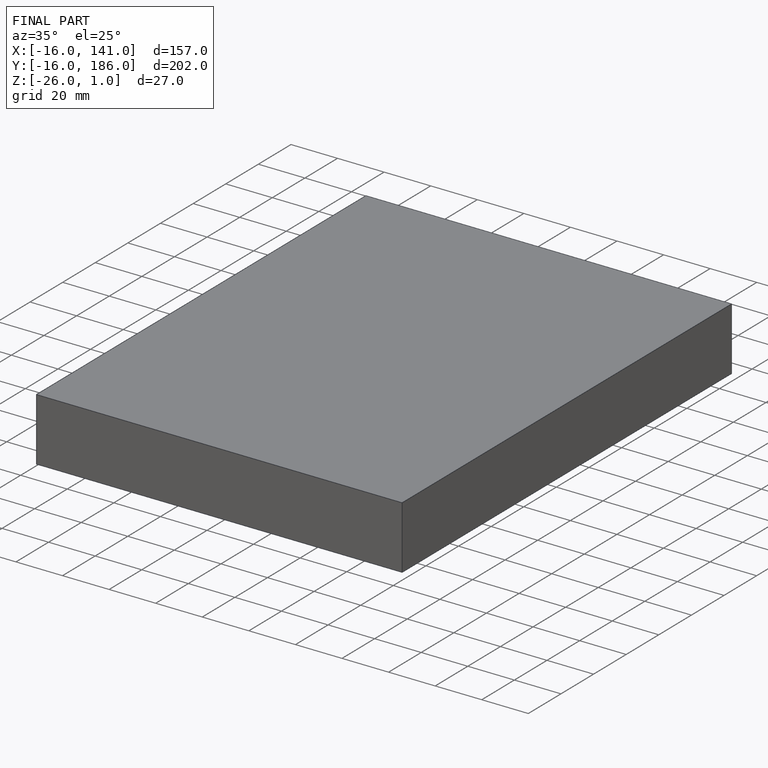
[diagram: finished part — iso view with bounding-box wireframe]
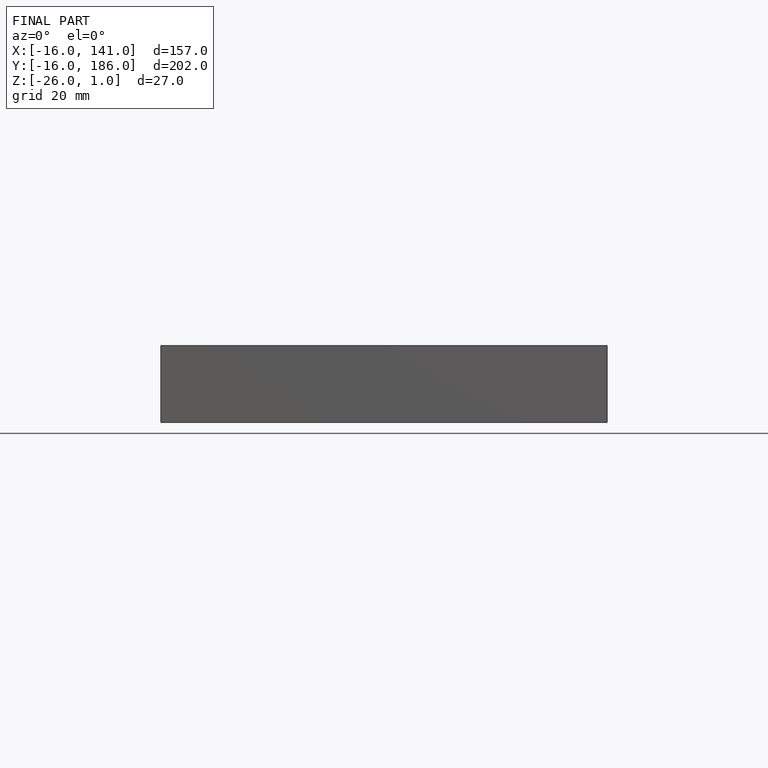
[diagram: finished part — front view with bounding-box wireframe]
